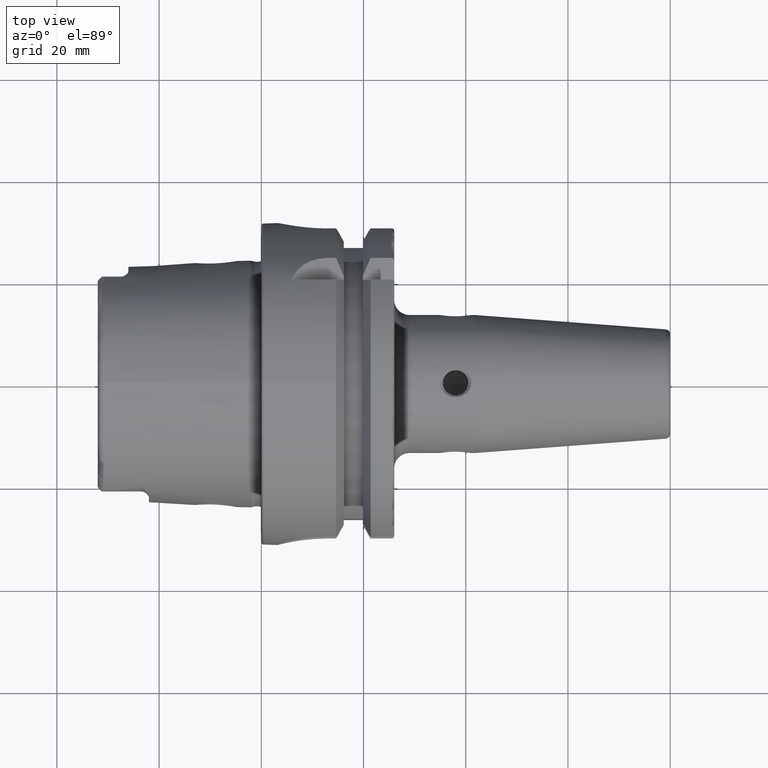
[diagram: clean part render]
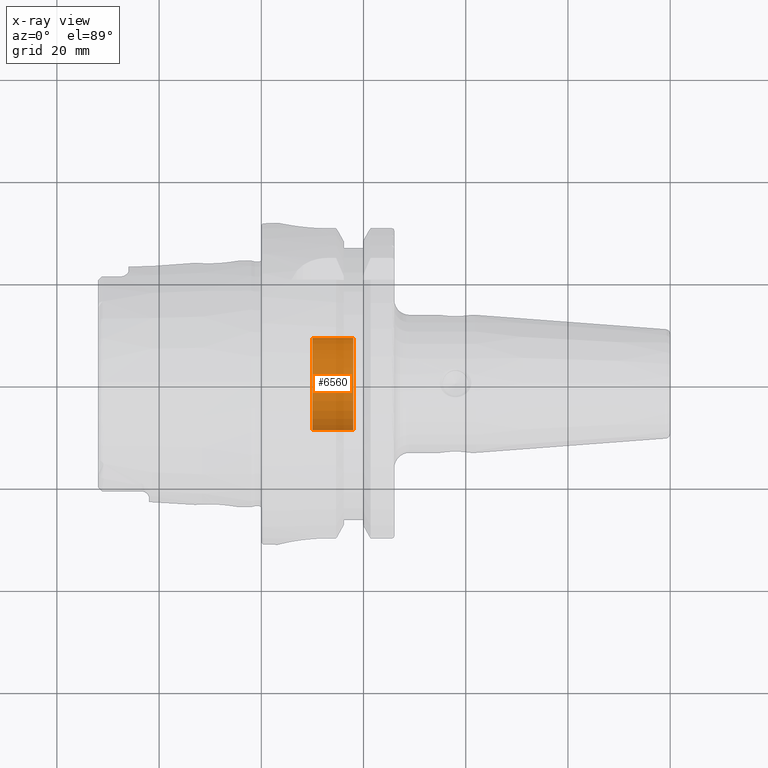
[diagram: x-ray — body ghosted, one internal face saturated and labeled with its STEP entity id]
A machine part, top view, then the same camera in x-ray: the body is ghosted and one INTERNAL B-rep face — a face not visible from any outside direction — is saturated and labeled: STEP entity #6560.
In plain terms, the highlighted cylindrical surface (partial cylindrical patch) has radius 9 mm, axis along (-1, 0, 0).
Its self-contained STEP definition (entity closure, byte-faithful):
#6495=CARTESIAN_POINT('',(3.937007874016E-1,0.E0,0.E0));
#6496=DIRECTION('',(1.E0,0.E0,0.E0));
#6497=DIRECTION('',(0.E0,-1.E0,0.E0));
#6498=AXIS2_PLACEMENT_3D('',#6495,#6496,#6497);
#6500=DIRECTION('',(1.E0,0.E0,0.E0));
#6501=VECTOR('',#6500,3.149606299213E-1);
#6502=CARTESIAN_POINT('',(3.937007874016E-1,3.543307086614E-1,0.E0));
#6503=LINE('',#6502,#6501);
#6509=DIRECTION('',(1.E0,0.E0,0.E0));
#6510=VECTOR('',#6509,3.149606299213E-1);
#6511=CARTESIAN_POINT('',(3.937007874016E-1,-3.543307086614E-1,0.E0));
#6512=LINE('',#6511,#6510);
#6518=CARTESIAN_POINT('',(7.086614173228E-1,0.E0,0.E0));
#6519=DIRECTION('',(-1.E0,0.E0,0.E0));
#6520=DIRECTION('',(0.E0,1.E0,0.E0));
#6521=AXIS2_PLACEMENT_3D('',#6518,#6519,#6520);
#6533=CARTESIAN_POINT('',(7.086614173228E-1,3.543307086614E-1,0.E0));
#6534=CARTESIAN_POINT('',(7.086614173228E-1,-3.543307086614E-1,0.E0));
#6535=VERTEX_POINT('',#6533);
#6536=VERTEX_POINT('',#6534);
#6537=CARTESIAN_POINT('',(3.937007874016E-1,3.543307086614E-1,0.E0));
#6538=VERTEX_POINT('',#6537);
#6539=CARTESIAN_POINT('',(3.937007874016E-1,-3.543307086614E-1,0.E0));
#6540=VERTEX_POINT('',#6539);
#6545=CARTESIAN_POINT('',(7.657480314961E-1,0.E0,0.E0));
#6546=DIRECTION('',(-1.E0,0.E0,0.E0));
#6547=DIRECTION('',(0.E0,1.E0,0.E0));
#6548=AXIS2_PLACEMENT_3D('',#6545,#6546,#6547);
#6549=CYLINDRICAL_SURFACE('',#6548,3.543307086614E-1);
#6551=ORIENTED_EDGE('',*,*,#6550,.T.);
#6553=ORIENTED_EDGE('',*,*,#6552,.T.);
#6555=ORIENTED_EDGE('',*,*,#6554,.F.);
#6557=ORIENTED_EDGE('',*,*,#6556,.T.);
#6558=EDGE_LOOP('',(#6551,#6553,#6555,#6557));
#6559=FACE_OUTER_BOUND('',#6558,.F.);
#6560=ADVANCED_FACE('',(#6559),#6549,.F.);
#6499=CIRCLE('',#6498,3.543307086614E-1);
#6522=CIRCLE('',#6521,3.543307086614E-1);
#6550=EDGE_CURVE('',#6538,#6535,#6503,.T.);
#6552=EDGE_CURVE('',#6535,#6536,#6522,.T.);
#6554=EDGE_CURVE('',#6540,#6536,#6512,.T.);
#6556=EDGE_CURVE('',#6540,#6538,#6499,.T.);